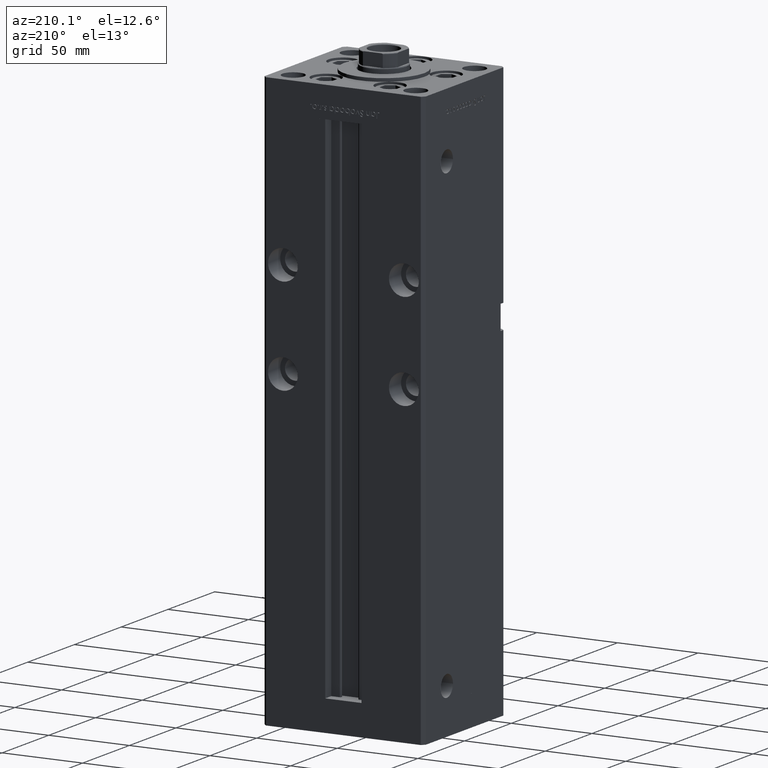
[diagram: clean part render]
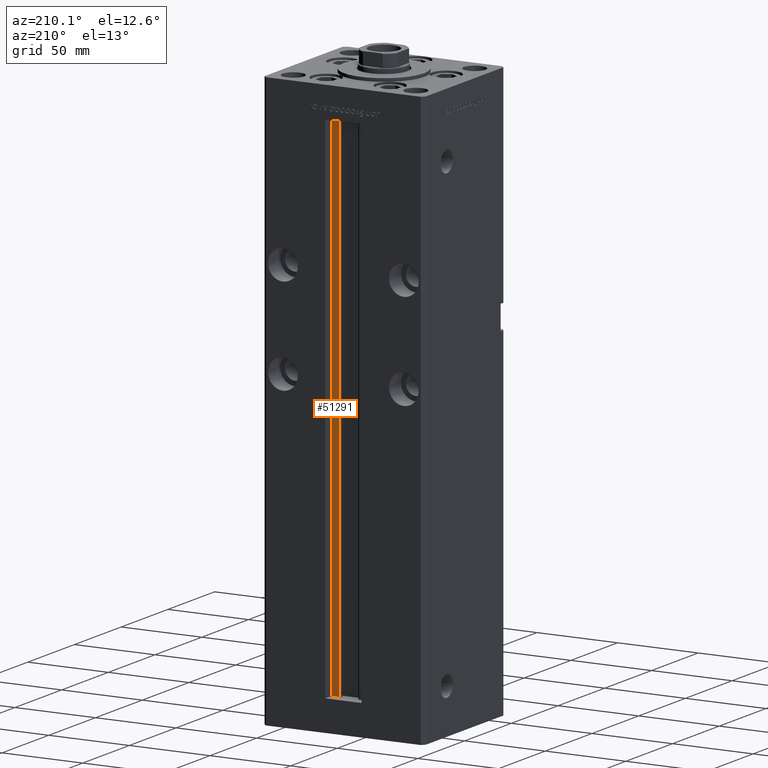
[diagram: same view with one face highlighted and labeled with its STEP entity id]
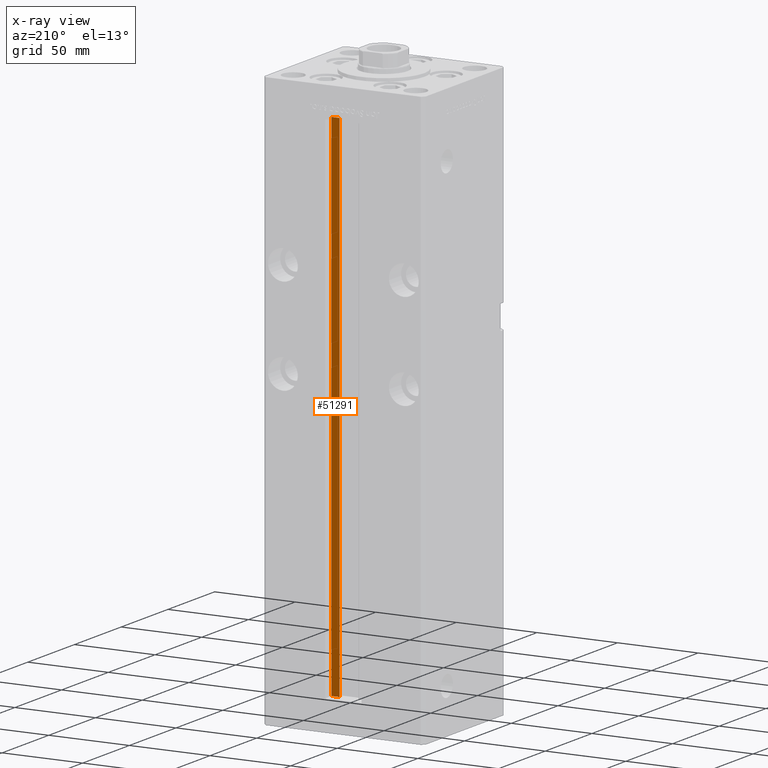
[diagram: x-ray of the same camera — body ghosted, the highlighted face saturated]
A machine part, auxiliary view. The second image highlights one B-rep face of the part: STEP entity #51291.
The next image is the same camera in x-ray: the body ghosted, the highlighted face saturated — about 0% of this face is hidden behind the body in this view.
In plain terms, the highlighted planar face has unit normal (0, -1, 0).
Its self-contained STEP definition (entity closure, byte-faithful):
#2883 = CARTESIAN_POINT ( 'NONE',  ( 6.183333333333996151, 37.00000000000000000, 0.000000000000000000 ) ) ;
#4328 = EDGE_CURVE ( 'NONE', #42311, #16409, #12166, .T. ) ;
#5107 = EDGE_CURVE ( 'NONE', #20388, #25151, #51956, .T. ) ;
#6662 = DIRECTION ( 'NONE',  ( 0.000000000000000000, -0.000000000000000000, -1.000000000000000000 ) ) ;
#7075 = CARTESIAN_POINT ( 'NONE',  ( 11.24999999999999645, 37.00000000000000000, 0.000000000000000000 ) ) ;
#10672 = FACE_OUTER_BOUND ( 'NONE', #31158, .T. ) ;
#11908 = ORIENTED_EDGE ( 'NONE', *, *, #46498, .F. ) ;
#12166 = LINE ( 'NONE', #7075, #45295 ) ;
#14569 = ORIENTED_EDGE ( 'NONE', *, *, #53085, .F. ) ;
#16409 = VERTEX_POINT ( 'NONE', #25227 ) ;
#17870 = CARTESIAN_POINT ( 'NONE',  ( 0.000000000000000000, 37.00000000000000000, 318.5000000000000000 ) ) ;
#19203 = VECTOR ( 'NONE', #30338, 1000.000000000000000 ) ;
#20388 = VERTEX_POINT ( 'NONE', #24985 ) ;
#22384 = DIRECTION ( 'NONE',  ( -0.000000000000000000, -0.000000000000000000, 1.000000000000000000 ) ) ;
#24859 = CARTESIAN_POINT ( 'NONE',  ( 6.183333333333996151, 37.00000000000000000, 318.5000000000000000 ) ) ;
#24985 = CARTESIAN_POINT ( 'NONE',  ( 6.183333333333996151, 37.00000000000000000, 0.000000000000000000 ) ) ;
#25151 = VERTEX_POINT ( 'NONE', #24859 ) ;
#25227 = CARTESIAN_POINT ( 'NONE',  ( 11.24999999999999645, 37.00000000000000000, 318.5000000000000000 ) ) ;
#25325 = VECTOR ( 'NONE', #30784, 1000.000000000000000 ) ;
#26482 = LINE ( 'NONE', #17870, #25325 ) ;
#30338 = DIRECTION ( 'NONE',  ( 1.000000000000000000, 0.000000000000000000, 0.000000000000000000 ) ) ;
#30784 = DIRECTION ( 'NONE',  ( -1.000000000000000000, 0.000000000000000000, 0.000000000000000000 ) ) ;
#31158 = EDGE_LOOP ( 'NONE', ( #42366, #11908, #46361, #14569 ) ) ;
#31355 = AXIS2_PLACEMENT_3D ( 'NONE', #2883, #35915, #6662 ) ;
#32308 = VECTOR ( 'NONE', #22384, 1000.000000000000000 ) ;
#35915 = DIRECTION ( 'NONE',  ( 0.000000000000000000, -1.000000000000000000, 0.000000000000000000 ) ) ;
#39687 = PLANE ( 'NONE',  #31355 ) ;
#41975 = CARTESIAN_POINT ( 'NONE',  ( 11.24999999999999645, 37.00000000000000000, 0.000000000000000000 ) ) ;
#42311 = VERTEX_POINT ( 'NONE', #41975 ) ;
#42366 = ORIENTED_EDGE ( 'NONE', *, *, #4328, .F. ) ;
#42831 = CARTESIAN_POINT ( 'NONE',  ( 6.183333333333996151, 37.00000000000000000, 0.000000000000000000 ) ) ;
#45295 = VECTOR ( 'NONE', #51948, 1000.000000000000000 ) ;
#46361 = ORIENTED_EDGE ( 'NONE', *, *, #5107, .T. ) ;
#46498 = EDGE_CURVE ( 'NONE', #20388, #42311, #51018, .T. ) ;
#46732 = CARTESIAN_POINT ( 'NONE',  ( 6.183333333333996151, 37.00000000000000000, 0.000000000000000000 ) ) ;
#51018 = LINE ( 'NONE', #46732, #19203 ) ;
#51291 = ADVANCED_FACE ( 'NONE', ( #10672 ), #39687, .F. ) ;
#51948 = DIRECTION ( 'NONE',  ( -0.000000000000000000, -0.000000000000000000, 1.000000000000000000 ) ) ;
#51956 = LINE ( 'NONE', #42831, #32308 ) ;
#53085 = EDGE_CURVE ( 'NONE', #16409, #25151, #26482, .T. ) ;